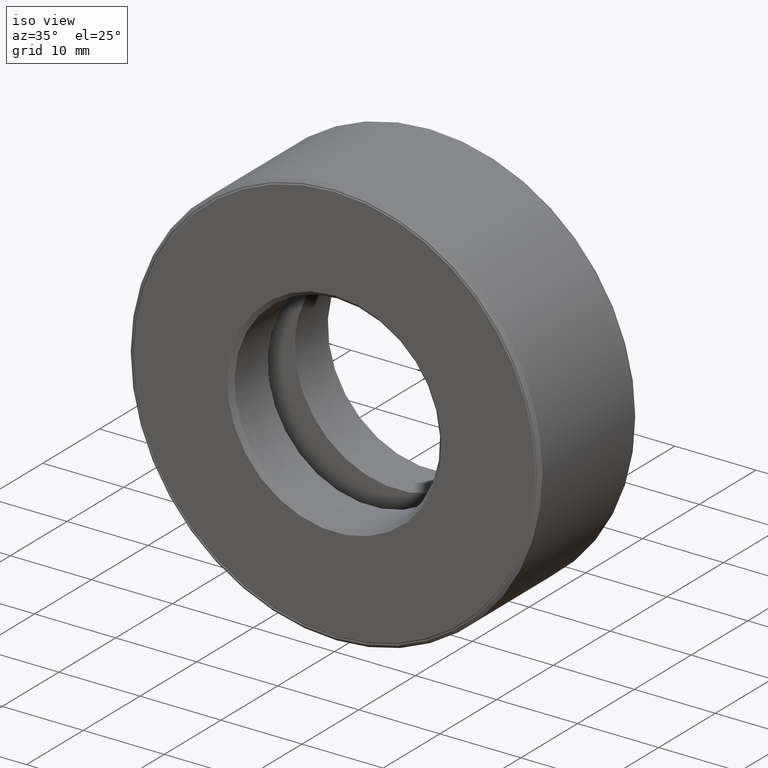
[diagram: clean part render]
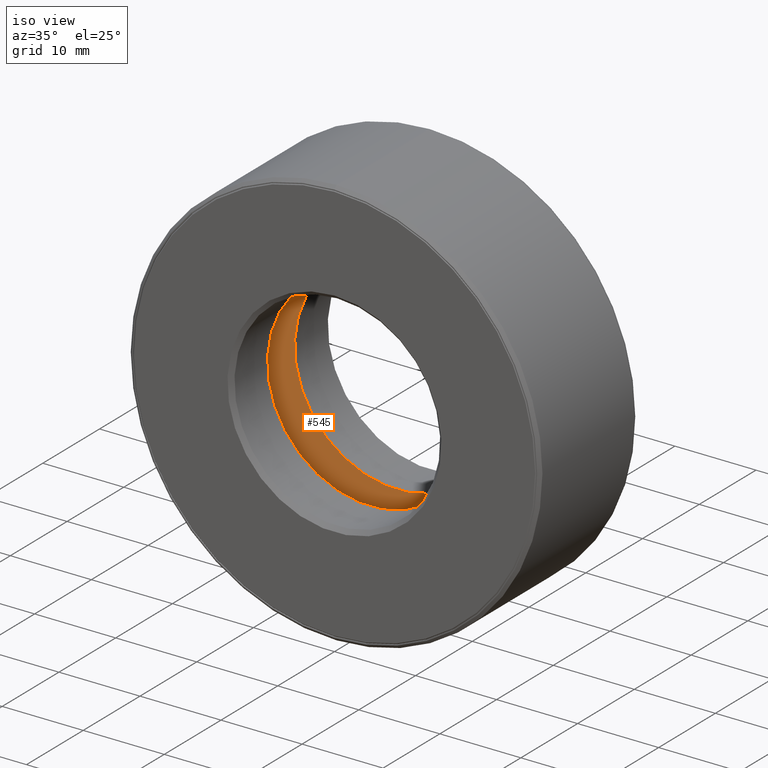
[diagram: same view with one face highlighted and labeled with its STEP entity id]
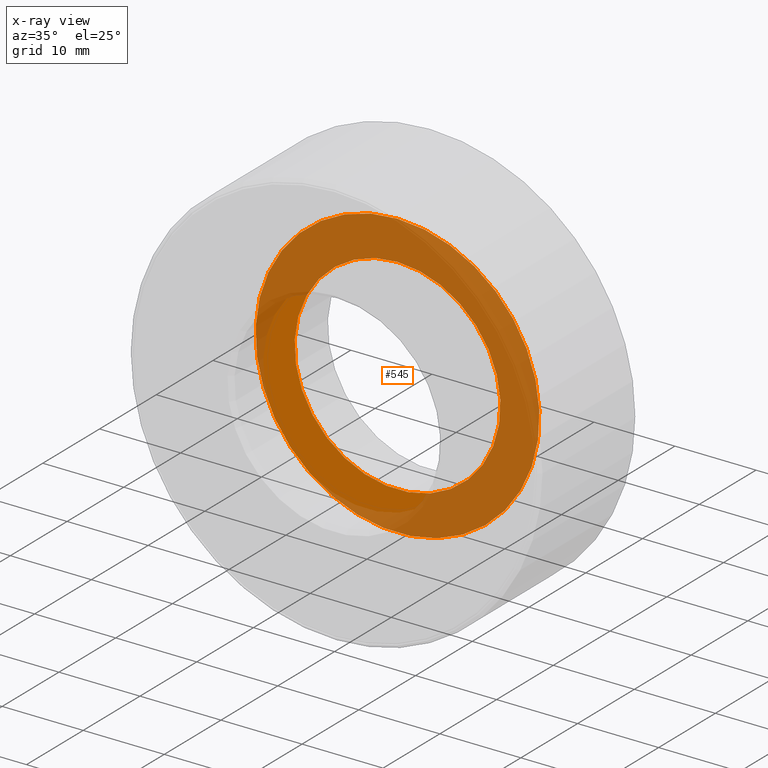
[diagram: x-ray of the same camera — body ghosted, the highlighted face saturated]
A machine part, iso view. The second image highlights one B-rep face of the part: STEP entity #545.
The next image is the same camera in x-ray: the body ghosted, the highlighted face saturated — about 74% of this face is hidden behind the body in this view.
In plain terms, the highlighted planar face has unit normal (0, -1, 0).
Its self-contained STEP definition (entity closure, byte-faithful):
#66 = EDGE_CURVE ( 'NONE', #429, #429, #516, .T. ) ;
#68 = DIRECTION ( 'NONE',  ( -0.0000000000000000000, 1.000000000000000000, -0.0000000000000000000 ) ) ;
#76 = CARTESIAN_POINT ( 'NONE',  ( 1.574681814529796800E-016, 0.4374999999999998900, 0.0000000000000000000 ) ) ;
#90 = DIRECTION ( 'NONE',  ( -0.0000000000000000000, 1.000000000000000000, -0.0000000000000000000 ) ) ;
#143 = CARTESIAN_POINT ( 'NONE',  ( 0.0000000000000000000, 0.4374999999999998900, 0.0000000000000000000 ) ) ;
#160 = AXIS2_PLACEMENT_3D ( 'NONE', #143, #90, #551 ) ;
#172 = CARTESIAN_POINT ( 'NONE',  ( 0.0000000000000000000, 0.4375000000000000000, 0.6897499999999997500 ) ) ;
#213 = DIRECTION ( 'NONE',  ( 0.0000000000000000000, -1.000000000000000000, 0.0000000000000000000 ) ) ;
#220 = FACE_OUTER_BOUND ( 'NONE', #237, .T. ) ;
#237 = EDGE_LOOP ( 'NONE', ( #527 ) ) ;
#251 = CIRCLE ( 'NONE', #495, 0.6897499999999997500 ) ;
#265 = DIRECTION ( 'NONE',  ( 0.0000000000000000000, -0.0000000000000000000, -1.000000000000000000 ) ) ;
#273 = AXIS2_PLACEMENT_3D ( 'NONE', #76, #213, #265 ) ;
#292 = VERTEX_POINT ( 'NONE', #172 ) ;
#396 = ORIENTED_EDGE ( 'NONE', *, *, #66, .T. ) ;
#406 = PLANE ( 'NONE',  #273 ) ;
#429 = VERTEX_POINT ( 'NONE', #492 ) ;
#436 = EDGE_LOOP ( 'NONE', ( #396 ) ) ;
#492 = CARTESIAN_POINT ( 'NONE',  ( 0.0000000000000000000, 0.4374999999999998900, 0.5000000000000001100 ) ) ;
#495 = AXIS2_PLACEMENT_3D ( 'NONE', #538, #68, #587 ) ;
#516 = CIRCLE ( 'NONE', #160, 0.5000000000000001100 ) ;
#527 = ORIENTED_EDGE ( 'NONE', *, *, #581, .F. ) ;
#538 = CARTESIAN_POINT ( 'NONE',  ( 0.0000000000000000000, 0.4375000000000000000, 0.0000000000000000000 ) ) ;
#545 = ADVANCED_FACE ( 'NONE', ( #594, #220 ), #406, .T. ) ;
#551 = DIRECTION ( 'NONE',  ( 0.0000000000000000000, 0.0000000000000000000, 1.000000000000000000 ) ) ;
#581 = EDGE_CURVE ( 'NONE', #292, #292, #251, .T. ) ;
#587 = DIRECTION ( 'NONE',  ( 0.0000000000000000000, 0.0000000000000000000, 1.000000000000000000 ) ) ;
#594 = FACE_BOUND ( 'NONE', #436, .T. ) ;